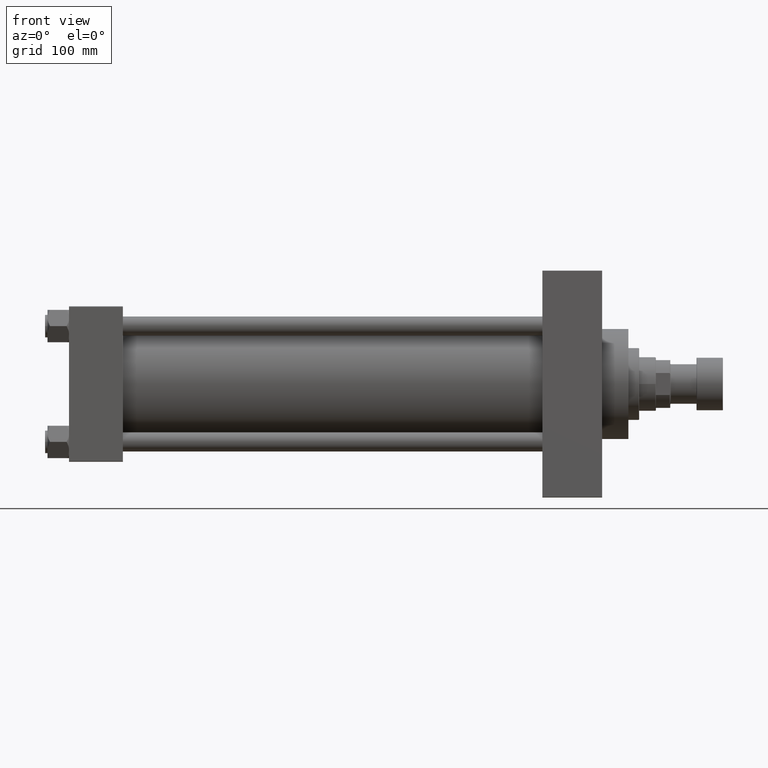
[diagram: clean part render]
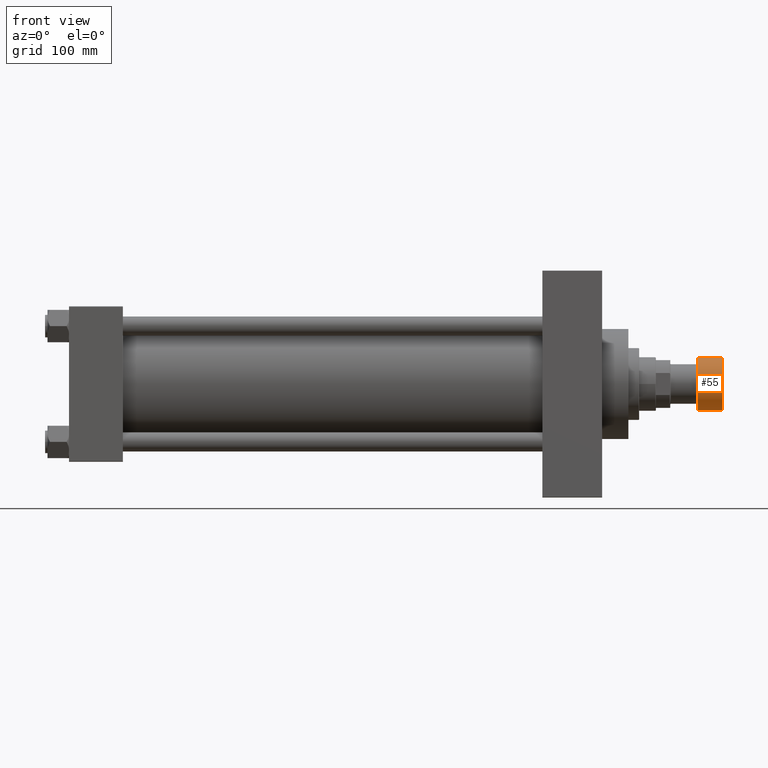
[diagram: same view with one face highlighted and labeled with its STEP entity id]
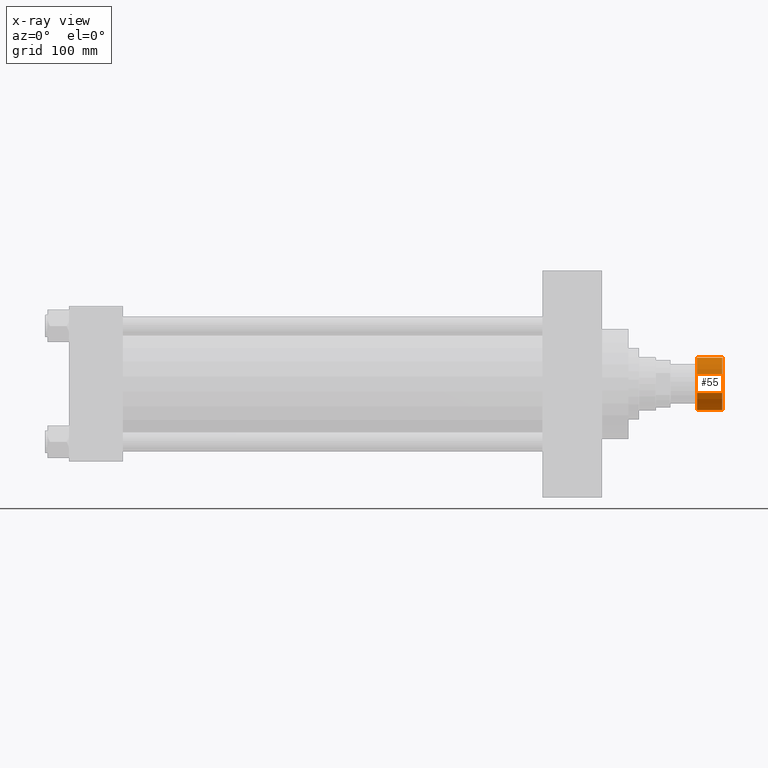
[diagram: x-ray of the same camera — body ghosted, the highlighted face saturated]
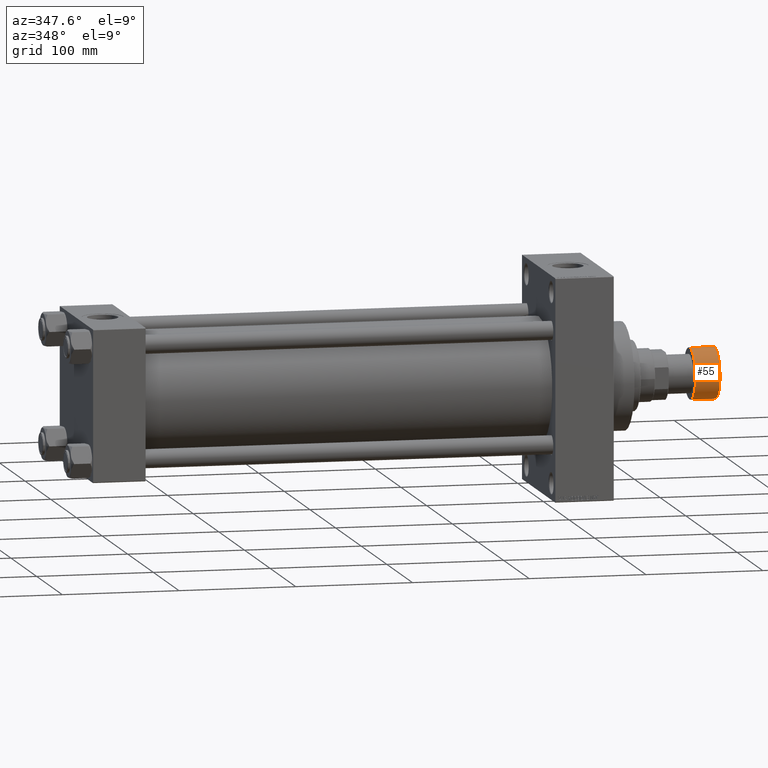
[diagram: same view with one face highlighted and labeled with its STEP entity id]
A machine part, front view. The second image highlights one B-rep face of the part: STEP entity #55.
The next image is the same camera in x-ray: the body ghosted, the highlighted face saturated — about 0% of this face is hidden behind the body in this view.
A second angle (auxiliary view) of the same face is appended — the face is thin or edge-on in the first view.
In plain terms, the highlighted cylindrical surface (edge-blend (fillet) strip) has radius 22 mm, axis along (1, 0, 0).
Its self-contained STEP definition (entity closure, byte-faithful):
#55 = ADVANCED_FACE ( 'NONE', ( #15026 ), #29927, .T. ) ;
#122 = ORIENTED_EDGE ( 'NONE', *, *, #33334, .T. ) ;
#1156 = CIRCLE ( 'NONE', #28463, 22.00000000000000000 ) ;
#1852 = DIRECTION ( 'NONE',  ( -0.000000000000000000, -0.000000000000000000, -1.000000000000000000 ) ) ;
#2983 = CARTESIAN_POINT ( 'NONE',  ( 0.000000000000000000, 0.000000000000000000, -21.50000000000000000 ) ) ;
#5987 = CARTESIAN_POINT ( 'NONE',  ( 22.00000000000000000, 0.000000000000000000, -22.00000000000000000 ) ) ;
#6631 = ORIENTED_EDGE ( 'NONE', *, *, #14378, .F. ) ;
#7502 = LINE ( 'NONE', #37767, #41730 ) ;
#7559 = VERTEX_POINT ( 'NONE', #31182 ) ;
#13271 = AXIS2_PLACEMENT_3D ( 'NONE', #44814, #37489, #35262 ) ;
#13593 = VERTEX_POINT ( 'NONE', #15056 ) ;
#13767 = DIRECTION ( 'NONE',  ( 0.000000000000000000, 0.000000000000000000, 1.000000000000000000 ) ) ;
#14378 = EDGE_CURVE ( 'NONE', #13593, #44008, #7502, .T. ) ;
#14632 = CIRCLE ( 'NONE', #17723, 22.00000000000000000 ) ;
#15026 = FACE_OUTER_BOUND ( 'NONE', #26081, .T. ) ;
#15056 = CARTESIAN_POINT ( 'NONE',  ( -22.00000000000000000, 2.694222958124176809E-15, -21.50000000000000000 ) ) ;
#16776 = DIRECTION ( 'NONE',  ( 1.000000000000000000, 0.000000000000000000, 0.000000000000000000 ) ) ;
#17723 = AXIS2_PLACEMENT_3D ( 'NONE', #2983, #13767, #35985 ) ;
#20877 = LINE ( 'NONE', #5987, #27882 ) ;
#22091 = CARTESIAN_POINT ( 'NONE',  ( 22.00000000000000000, 0.000000000000000000, -0.5000000000000004441 ) ) ;
#26081 = EDGE_LOOP ( 'NONE', ( #6631, #122, #35356, #47095 ) ) ;
#27882 = VECTOR ( 'NONE', #33089, 1000.000000000000000 ) ;
#28463 = AXIS2_PLACEMENT_3D ( 'NONE', #35332, #1852, #16776 ) ;
#29334 = EDGE_CURVE ( 'NONE', #7559, #30304, #20877, .T. ) ;
#29927 = CYLINDRICAL_SURFACE ( 'NONE', #13271, 22.00000000000000000 ) ;
#30304 = VERTEX_POINT ( 'NONE', #22091 ) ;
#31182 = CARTESIAN_POINT ( 'NONE',  ( 22.00000000000000000, 0.000000000000000000, -21.50000000000000000 ) ) ;
#33089 = DIRECTION ( 'NONE',  ( 0.000000000000000000, 0.000000000000000000, 1.000000000000000000 ) ) ;
#33334 = EDGE_CURVE ( 'NONE', #13593, #7559, #14632, .T. ) ;
#35222 = CARTESIAN_POINT ( 'NONE',  ( -22.00000000000000000, 2.694222958124176809E-15, -0.5000000000000004441 ) ) ;
#35262 = DIRECTION ( 'NONE',  ( 1.000000000000000000, 0.000000000000000000, 0.000000000000000000 ) ) ;
#35332 = CARTESIAN_POINT ( 'NONE',  ( 0.000000000000000000, 0.000000000000000000, -0.5000000000000004441 ) ) ;
#35356 = ORIENTED_EDGE ( 'NONE', *, *, #29334, .T. ) ;
#35985 = DIRECTION ( 'NONE',  ( 1.000000000000000000, 0.000000000000000000, 0.000000000000000000 ) ) ;
#37489 = DIRECTION ( 'NONE',  ( 0.000000000000000000, 0.000000000000000000, 1.000000000000000000 ) ) ;
#37767 = CARTESIAN_POINT ( 'NONE',  ( -22.00000000000000000, 2.694222958124176809E-15, -22.00000000000000000 ) ) ;
#41676 = DIRECTION ( 'NONE',  ( 0.000000000000000000, 0.000000000000000000, 1.000000000000000000 ) ) ;
#41730 = VECTOR ( 'NONE', #41676, 1000.000000000000000 ) ;
#44008 = VERTEX_POINT ( 'NONE', #35222 ) ;
#44814 = CARTESIAN_POINT ( 'NONE',  ( 0.000000000000000000, 0.000000000000000000, -22.00000000000000000 ) ) ;
#47095 = ORIENTED_EDGE ( 'NONE', *, *, #47806, .T. ) ;
#47806 = EDGE_CURVE ( 'NONE', #30304, #44008, #1156, .T. ) ;